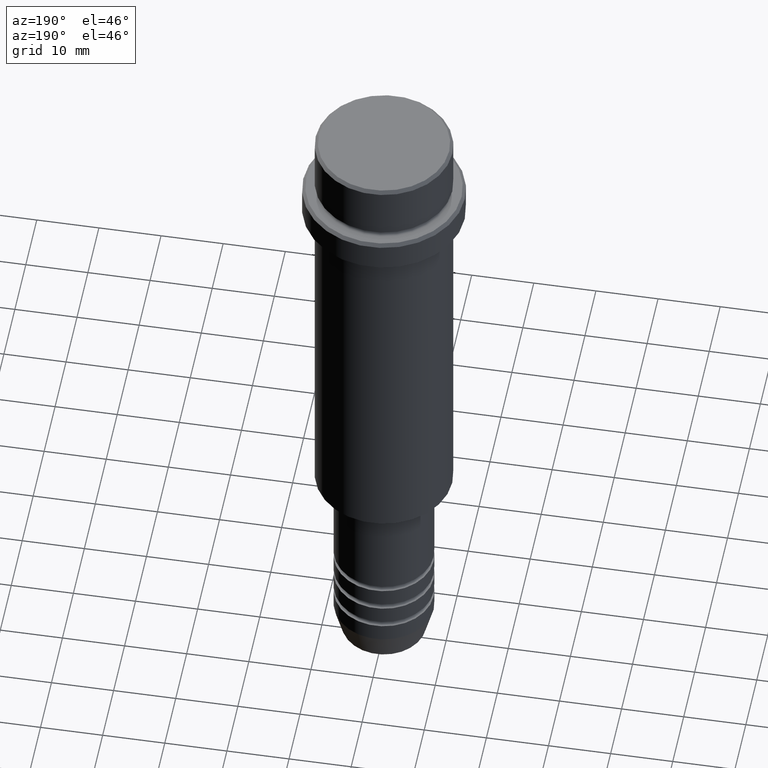
[diagram: clean part render]
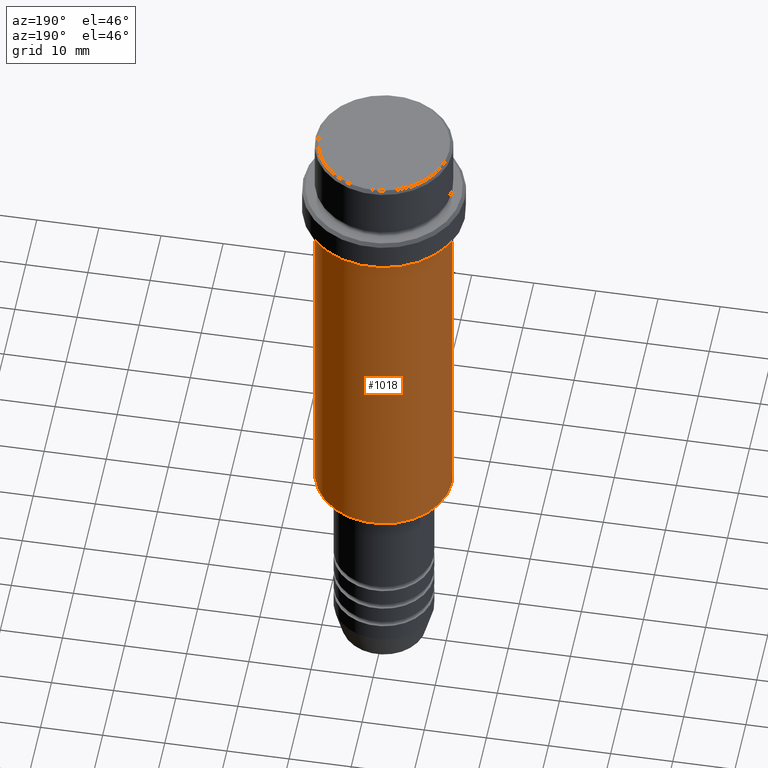
[diagram: same view with one face highlighted and labeled with its STEP entity id]
A machine part, auxiliary view. The second image highlights one B-rep face of the part: STEP entity #1018.
In plain terms, the highlighted cylindrical surface (partial cylindrical patch) has radius 11 mm, axis along (-0, -0, 1).
Its self-contained STEP definition (entity closure, byte-faithful):
#11 = DIRECTION ( 'NONE',  ( -0.000000000000000000, -0.000000000000000000, 1.000000000000000000 ) ) ;
#29 = DIRECTION ( 'NONE',  ( -1.000000000000000000, 0.000000000000000000, 0.000000000000000000 ) ) ;
#63 = CARTESIAN_POINT ( 'NONE',  ( 10.99999999999998757, 0.000000000000000000, -75.50000000000002842 ) ) ;
#161 = CARTESIAN_POINT ( 'NONE',  ( -10.99999999999998757, 1.347111479062086827E-15, 0.000000000000000000 ) ) ;
#169 = AXIS2_PLACEMENT_3D ( 'NONE', #764, #1103, #29 ) ;
#200 = DIRECTION ( 'NONE',  ( -0.000000000000000000, -0.000000000000000000, 1.000000000000000000 ) ) ;
#292 = EDGE_CURVE ( 'NONE', #874, #474, #1185, .T. ) ;
#323 = VERTEX_POINT ( 'NONE', #1317 ) ;
#331 = EDGE_CURVE ( 'NONE', #874, #323, #508, .T. ) ;
#420 = EDGE_CURVE ( 'NONE', #323, #654, #1138, .T. ) ;
#468 = EDGE_CURVE ( 'NONE', #474, #654, #1066, .T. ) ;
#474 = VERTEX_POINT ( 'NONE', #1386 ) ;
#490 = EDGE_LOOP ( 'NONE', ( #1274, #916, #1135, #1246 ) ) ;
#508 = CIRCLE ( 'NONE', #169, 10.99999999999998757 ) ;
#513 = AXIS2_PLACEMENT_3D ( 'NONE', #983, #11, #768 ) ;
#592 = CARTESIAN_POINT ( 'NONE',  ( 0.000000000000000000, 0.000000000000000000, -16.00000000000000355 ) ) ;
#654 = VERTEX_POINT ( 'NONE', #1063 ) ;
#703 = DIRECTION ( 'NONE',  ( 1.000000000000000000, 0.000000000000000000, 0.000000000000000000 ) ) ;
#759 = CYLINDRICAL_SURFACE ( 'NONE', #513, 10.99999999999998757 ) ;
#764 = CARTESIAN_POINT ( 'NONE',  ( 0.000000000000000000, 0.000000000000000000, -75.50000000000002842 ) ) ;
#768 = DIRECTION ( 'NONE',  ( 1.000000000000000000, 0.000000000000000000, 0.000000000000000000 ) ) ;
#828 = AXIS2_PLACEMENT_3D ( 'NONE', #592, #1374, #703 ) ;
#874 = VERTEX_POINT ( 'NONE', #63 ) ;
#916 = ORIENTED_EDGE ( 'NONE', *, *, #420, .T. ) ;
#983 = CARTESIAN_POINT ( 'NONE',  ( 0.000000000000000000, 0.000000000000000000, 0.000000000000000000 ) ) ;
#1018 = ADVANCED_FACE ( 'NONE', ( #1225 ), #759, .T. ) ;
#1063 = CARTESIAN_POINT ( 'NONE',  ( -10.99999999999997158, 1.347111479062085841E-15, -16.00000000000000355 ) ) ;
#1066 = CIRCLE ( 'NONE', #828, 10.99999999999997158 ) ;
#1103 = DIRECTION ( 'NONE',  ( -0.000000000000000000, -0.000000000000000000, 1.000000000000000000 ) ) ;
#1135 = ORIENTED_EDGE ( 'NONE', *, *, #468, .F. ) ;
#1138 = LINE ( 'NONE', #161, #1307 ) ;
#1185 = LINE ( 'NONE', #1408, #1358 ) ;
#1225 = FACE_OUTER_BOUND ( 'NONE', #490, .T. ) ;
#1246 = ORIENTED_EDGE ( 'NONE', *, *, #292, .F. ) ;
#1259 = DIRECTION ( 'NONE',  ( -0.000000000000000000, -0.000000000000000000, 1.000000000000000000 ) ) ;
#1274 = ORIENTED_EDGE ( 'NONE', *, *, #331, .T. ) ;
#1307 = VECTOR ( 'NONE', #1259, 1000.000000000000000 ) ;
#1317 = CARTESIAN_POINT ( 'NONE',  ( -10.99999999999998757, 1.347111479062086827E-15, -75.50000000000002842 ) ) ;
#1358 = VECTOR ( 'NONE', #200, 1000.000000000000000 ) ;
#1374 = DIRECTION ( 'NONE',  ( -0.000000000000000000, -0.000000000000000000, 1.000000000000000000 ) ) ;
#1386 = CARTESIAN_POINT ( 'NONE',  ( 10.99999999999997158, 0.000000000000000000, -16.00000000000000355 ) ) ;
#1408 = CARTESIAN_POINT ( 'NONE',  ( 10.99999999999998757, 0.000000000000000000, 0.000000000000000000 ) ) ;